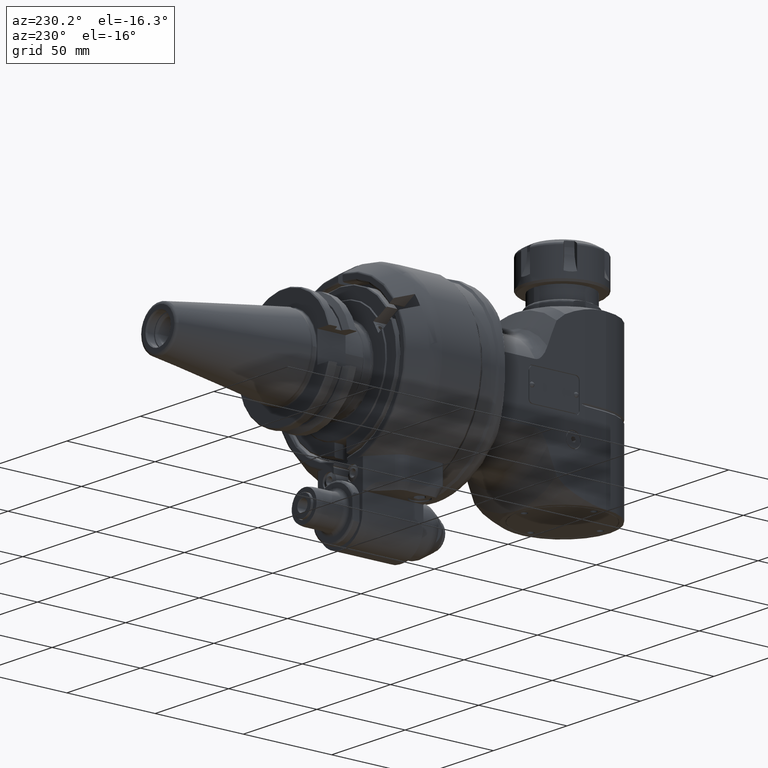
[diagram: clean part render]
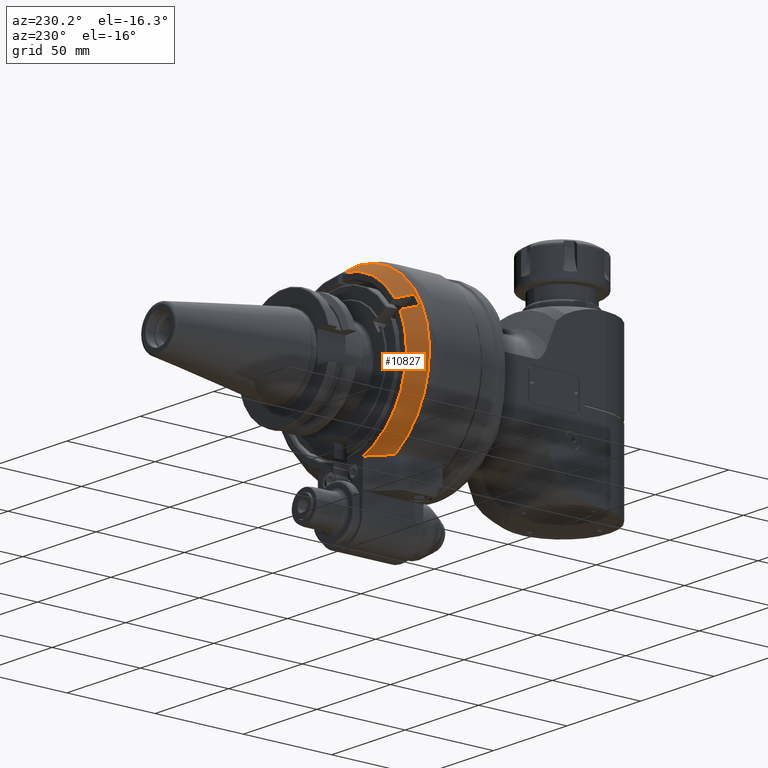
[diagram: same view with one face highlighted and labeled with its STEP entity id]
A machine part, auxiliary view. The second image highlights one B-rep face of the part: STEP entity #10827.
In plain terms, the highlighted conical surface has half-angle 30 deg.
Its self-contained STEP definition (entity closure, byte-faithful):
#147=CONICAL_SURFACE('',#12017,46.84048999,0.523598775598299);
#430=(
BOUNDED_CURVE()
B_SPLINE_CURVE(2,(#20468,#20469,#20470),.UNSPECIFIED.,.F.,.F.)
B_SPLINE_CURVE_WITH_KNOTS((3,3),(2.8844916667244,4.73034461921109),
 .UNSPECIFIED.)
CURVE()
GEOMETRIC_REPRESENTATION_ITEM()
RATIONAL_B_SPLINE_CURVE((1.03298555452386,1.03049774868244,1.01131829580632))
REPRESENTATION_ITEM('')
);
#558=B_SPLINE_CURVE_WITH_KNOTS('',3,(#20392,#20393,#20394,#20395,#20396,
#20397,#20398,#20399,#20400,#20401),.UNSPECIFIED.,.F.,.F.,(4,3,3,4),(0.,
0.3333333333333,0.6666666666667,0.999997659970445),.UNSPECIFIED.);
#562=B_SPLINE_CURVE_WITH_KNOTS('',3,(#20534,#20535,#20536,#20537,#20538,
#20539,#20540,#20541,#20542,#20543),.UNSPECIFIED.,.F.,.F.,(4,3,3,4),(7.66596114732898E-6,
0.3333333333333,0.6666666666667,1.),.UNSPECIFIED.);
#563=B_SPLINE_CURVE_WITH_KNOTS('',3,(#20547,#20548,#20549,#20550,#20551,
#20552,#20553,#20554,#20555,#20556),.UNSPECIFIED.,.F.,.F.,(4,3,3,4),(0.,
0.3333333333333,0.6666666666667,0.999992857018884),.UNSPECIFIED.);
#1176=CIRCLE('',#12014,49.39230484541);
#1178=CIRCLE('',#12018,44.28867513459);
#1179=CIRCLE('',#12019,48.90747728811);
#1180=CIRCLE('',#12020,44.28867513459);
#1765=FACE_OUTER_BOUND('',#2470,.T.);
#2470=EDGE_LOOP('',(#8708,#8709,#8710,#8711,#8712,#8713,#8714,#8715));
#4821=VERTEX_POINT('',#20389);
#4822=VERTEX_POINT('',#20391);
#4825=VERTEX_POINT('',#20415);
#4826=VERTEX_POINT('',#20467);
#4827=VERTEX_POINT('',#20531);
#4828=VERTEX_POINT('',#20533);
#4829=VERTEX_POINT('',#20544);
#4830=VERTEX_POINT('',#20546);
#6193=EDGE_CURVE('',#4822,#4821,#558,.T.);
#6198=EDGE_CURVE('',#4822,#4825,#1176,.T.);
#6199=EDGE_CURVE('',#4825,#4826,#430,.T.);
#6202=EDGE_CURVE('',#4827,#4821,#1178,.T.);
#6203=EDGE_CURVE('',#4827,#4828,#562,.T.);
#6204=EDGE_CURVE('',#4829,#4828,#1179,.T.);
#6205=EDGE_CURVE('',#4829,#4830,#563,.T.);
#6206=EDGE_CURVE('',#4826,#4830,#1180,.T.);
#8708=ORIENTED_EDGE('',*,*,#6199,.F.);
#8709=ORIENTED_EDGE('',*,*,#6198,.F.);
#8710=ORIENTED_EDGE('',*,*,#6193,.T.);
#8711=ORIENTED_EDGE('',*,*,#6202,.F.);
#8712=ORIENTED_EDGE('',*,*,#6203,.T.);
#8713=ORIENTED_EDGE('',*,*,#6204,.F.);
#8714=ORIENTED_EDGE('',*,*,#6205,.T.);
#8715=ORIENTED_EDGE('',*,*,#6206,.F.);
#10827=ADVANCED_FACE('',(#1765),#147,.T.);
#12014=AXIS2_PLACEMENT_3D('',#20465,#14504,#14505);
#12017=AXIS2_PLACEMENT_3D('',#20530,#14510,#14511);
#12018=AXIS2_PLACEMENT_3D('',#20532,#14512,#14513);
#12019=AXIS2_PLACEMENT_3D('',#20545,#14514,#14515);
#12020=AXIS2_PLACEMENT_3D('',#20557,#14516,#14517);
#14504=DIRECTION('center_axis',(0.,-1.,0.));
#14505=DIRECTION('ref_axis',(-0.0303691031364992,0.,0.999538752412674));
#14510=DIRECTION('center_axis',(0.,-1.,0.));
#14511=DIRECTION('ref_axis',(0.,0.,1.));
#14512=DIRECTION('center_axis',(0.,1.,0.));
#14513=DIRECTION('ref_axis',(-0.823803402997795,0.,0.566875606468697));
#14514=DIRECTION('center_axis',(0.,1.,0.));
#14515=DIRECTION('ref_axis',(-0.899586791598834,0.,0.436742034135616));
#14516=DIRECTION('center_axis',(0.,1.,0.));
#14517=DIRECTION('ref_axis',(-0.317304540867809,0.,-0.948323693864426));
#20389=CARTESIAN_POINT('',(-1.49999994161814,39.0000000307714,44.2632663040608));
#20391=CARTESIAN_POINT('',(-1.50000010664755,30.1602661977814,49.3695157362103));
#20392=CARTESIAN_POINT('Ctrl Pts',(-1.5,30.16027835559,49.36950871544));
#20393=CARTESIAN_POINT('Ctrl Pts',(-1.5,31.18982877885,48.77482320417));
#20394=CARTESIAN_POINT('Ctrl Pts',(-1.5,32.2036186971448,48.1892313102351));
#20395=CARTESIAN_POINT('Ctrl Pts',(-1.5,33.2013919082089,47.612880877291));
#20396=CARTESIAN_POINT('Ctrl Pts',(-1.5,34.1991651192732,47.0365304443467));
#20397=CARTESIAN_POINT('Ctrl Pts',(-1.5,35.1809216231068,46.4694214723933));
#20398=CARTESIAN_POINT('Ctrl Pts',(-1.5,36.1472838686536,45.9111942687465));
#20399=CARTESIAN_POINT('Ctrl Pts',(-1.5,37.1136393302515,45.3529709839044));
#20400=CARTESIAN_POINT('Ctrl Pts',(-1.5,38.0646007497001,44.8036293426678));
#20401=CARTESIAN_POINT('Ctrl Pts',(-1.5,39.0000000311363,44.2632663046979));
#20415=CARTESIAN_POINT('',(-25.9923022789438,30.1602540400476,-42.0000000006684));
#20465=CARTESIAN_POINT('Origin',(0.,30.16025403784,0.));
#20467=CARTESIAN_POINT('',(-14.0529977328341,38.9999999985392,-41.999999999679));
#20468=CARTESIAN_POINT('Ctrl Pts',(-25.9923022783559,30.1602540415666,-42.));
#20469=CARTESIAN_POINT('Ctrl Pts',(-19.6974303646479,35.8978898913525,-42.));
#20470=CARTESIAN_POINT('Ctrl Pts',(-14.0529977330381,38.9999999978967,-42.));
#20530=CARTESIAN_POINT('Origin',(0.,34.58012701892,0.));
#20531=CARTESIAN_POINT('',(-36.4851322129092,39.0000574701093,25.1061533734197));
#20532=CARTESIAN_POINT('Origin',(0.,39.,0.));
#20533=CARTESIAN_POINT('',(-40.4965205788,31.,27.42212894174));
#20534=CARTESIAN_POINT('Ctrl Pts',(-36.4851325523638,39.0000575278077,25.106152984854));
#20535=CARTESIAN_POINT('Ctrl Pts',(-36.9021284692853,38.1686740178928,25.3469056897396));
#20536=CARTESIAN_POINT('Ctrl Pts',(-37.3285997235782,37.3183138636494,25.5931289832072));
#20537=CARTESIAN_POINT('Ctrl Pts',(-37.7642990141934,36.4494677703336,25.8446800859296));
#20538=CARTESIAN_POINT('Ctrl Pts',(-38.2000083252007,35.5806016949368,26.0962369739281));
#20539=CARTESIAN_POINT('Ctrl Pts',(-38.6449460969957,34.6932488301632,26.3531219162466));
#20540=CARTESIAN_POINT('Ctrl Pts',(-39.1001961495135,33.7852448292439,26.6159606566164));
#20541=CARTESIAN_POINT('Ctrl Pts',(-39.5554462020312,32.8772408283249,26.8787993969861));
#20542=CARTESIAN_POINT('Ctrl Pts',(-40.0210085352717,31.94858569126,27.147591935407));
#20543=CARTESIAN_POINT('Ctrl Pts',(-40.4965205787996,31.,27.4221289417408));
#20544=CARTESIAN_POINT('',(-43.9965205788,31.,21.35995111525));
#20545=CARTESIAN_POINT('Origin',(0.,31.,0.));
#20546=CARTESIAN_POINT('',(-39.9851346518321,39.0000535829498,19.0439758254266));
#20547=CARTESIAN_POINT('Ctrl Pts',(-43.9965205787991,31.,21.3599511152515));
#20548=CARTESIAN_POINT('Ctrl Pts',(-43.5214324221258,31.94774009122,21.0856588401073));
#20549=CARTESIAN_POINT('Ctrl Pts',(-43.0561505057139,32.8758359954399,20.8170282004178));
#20550=CARTESIAN_POINT('Ctrl Pts',(-42.6009808609627,33.7836797088564,20.5542358834937));
#20551=CARTESIAN_POINT('Ctrl Pts',(-42.1458112162113,34.6915234222732,20.2914435665696));
#20552=CARTESIAN_POINT('Ctrl Pts',(-41.7007538431207,35.5791149448868,20.0344895724109));
#20553=CARTESIAN_POINT('Ctrl Pts',(-41.2648942837493,36.4482807184811,19.782845938479));
#20554=CARTESIAN_POINT('Ctrl Pts',(-40.8290440643879,37.317427866771,19.5312076970043));
#20555=CARTESIAN_POINT('Ctrl Pts',(-40.4023912645511,38.168150055722,19.284879588168));
#20556=CARTESIAN_POINT('Ctrl Pts',(-39.9851344961698,39.0000536366557,19.0439762806218));
#20557=CARTESIAN_POINT('Origin',(0.,39.,0.));